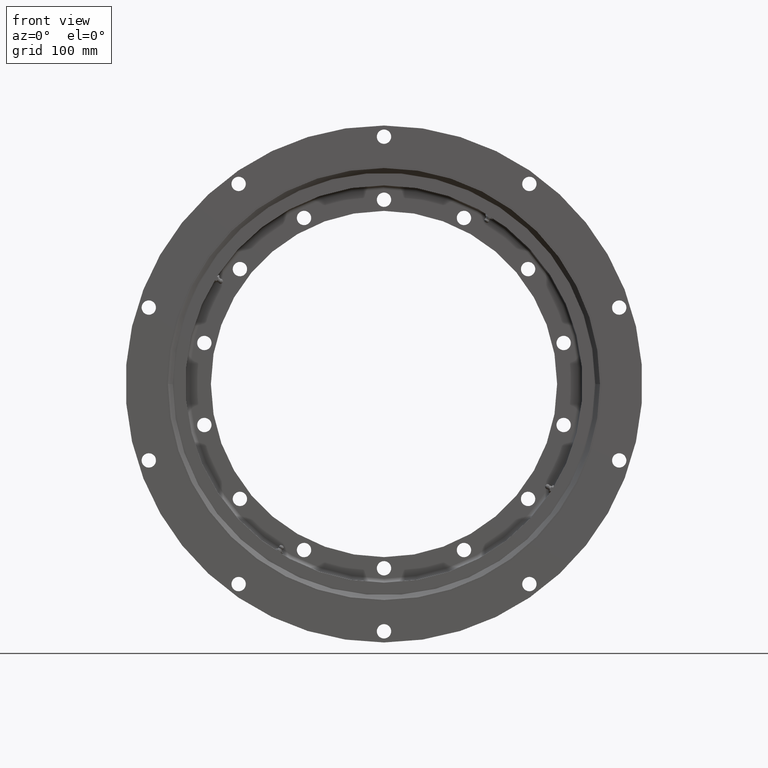
[diagram: clean part render]
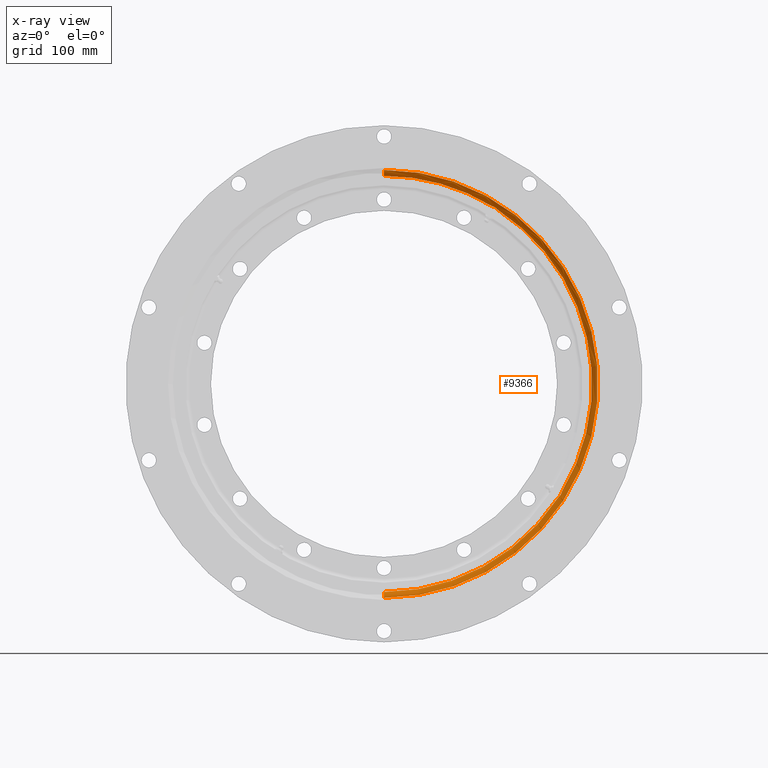
[diagram: x-ray — body ghosted, one internal face saturated and labeled with its STEP entity id]
A machine part, front view, then the same camera in x-ray: the body is ghosted and one INTERNAL B-rep face — a face not visible from any outside direction — is saturated and labeled: STEP entity #9366.
In plain terms, the highlighted toroidal blend (fillet) surface has major radius 270.5 mm and minor (blend) radius 9.75 mm.
Its self-contained STEP definition (entity closure, byte-faithful):
#76 = CARTESIAN_POINT ( 'NONE',  ( 138.8800591183159000, -3.500224078387525100, 221.4549976875646300 ) ) ;
#124 = VERTEX_POINT ( 'NONE', #547 ) ;
#193 = EDGE_LOOP ( 'NONE', ( #3663, #772, #424, #7395, #8630, #4376, #3859, #8140 ) ) ;
#239 = CARTESIAN_POINT ( 'NONE',  ( 0.0000000000000000000, 4.378157564182067000E-016, 270.5000000000000000 ) ) ;
#251 = CIRCLE ( 'NONE', #1826, 268.2499999999999400 ) ;
#303 = CARTESIAN_POINT ( 'NONE',  ( 222.5433277537596000, -1.557799274431172400, -136.1217524567283300 ) ) ;
#306 = CARTESIAN_POINT ( 'NONE',  ( 137.1294469064689000, -2.782060059802703700, 222.2547474271017300 ) ) ;
#342 = CARTESIAN_POINT ( 'NONE',  ( 140.7475804155833100, -2.780852899071048600, 219.9808737685548300 ) ) ;
#345 = TOROIDAL_SURFACE ( 'NONE', #6918, 270.5000000000000000, 9.750000000000000000 ) ;
#362 = DIRECTION ( 'NONE',  ( -0.0000000000000000000, 1.000000000000000000, -2.727064569436389700E-017 ) ) ;
#424 = ORIENTED_EDGE ( 'NONE', *, *, #3577, .T. ) ;
#431 = CARTESIAN_POINT ( 'NONE',  ( 219.2010795744142800, -1.562060620191480800, -141.4422267745897300 ) ) ;
#514 = CARTESIAN_POINT ( 'NONE',  ( 218.9013322833294500, 3.983541815740415600E-009, -141.6784006988482600 ) ) ;
#547 = CARTESIAN_POINT ( 'NONE',  ( 141.6784006988474700, 4.002741449246328300E-009, 218.9013322833299100 ) ) ;
#677 = AXIS2_PLACEMENT_3D ( 'NONE', #239, #2556, #3318 ) ;
#680 = CARTESIAN_POINT ( 'NONE',  ( 135.9399504802465800, -1.134555860348924300, 222.5853209432397900 ) ) ;
#692 = CARTESIAN_POINT ( 'NONE',  ( 138.0765613227555900, -3.319588108228148600, 221.8768568323748400 ) ) ;
#772 = ORIENTED_EDGE ( 'NONE', *, *, #5962, .T. ) ;
#833 = CARTESIAN_POINT ( 'NONE',  ( 137.6824525636340600, -3.142621221538537800, 222.0484958603185000 ) ) ;
#849 = CARTESIAN_POINT ( 'NONE',  ( 136.1211422573414000, -1.556442049660956800, 222.5434698988041500 ) ) ;
#865 = VERTEX_POINT ( 'NONE', #514 ) ;
#957 = CARTESIAN_POINT ( 'NONE',  ( 136.9548264361558000, -2.635532016342790700, 222.3119848796000000 ) ) ;
#971 = CARTESIAN_POINT ( 'NONE',  ( 141.6635651407930000, -0.4613848610804012800, 218.9208245112679100 ) ) ;
#1040 = CARTESIAN_POINT ( 'NONE',  ( 221.0800476896037600, -3.477122078500964900, -139.4593177460055200 ) ) ;
#1076 = DIRECTION ( 'NONE',  ( 0.0000000000000000000, 2.727064569436389400E-017, 1.000000000000000000 ) ) ;
#1078 = CARTESIAN_POINT ( 'NONE',  ( 222.6004179403163900, -0.9153663312041254700, -135.8701898177673400 ) ) ;
#1114 = CIRCLE ( 'NONE', #3373, 260.7500000000000600 ) ;
#1202 = AXIS2_PLACEMENT_3D ( 'NONE', #7824, #2513, #6551 ) ;
#1203 = CARTESIAN_POINT ( 'NONE',  ( 3.193266528776723400E-014, -8.132924533075886600E-015, -260.7500000000000600 ) ) ;
#1209 = CARTESIAN_POINT ( 'NONE',  ( 219.4911821013024600, -2.138512993942472300, -141.1986388680401800 ) ) ;
#1287 = CARTESIAN_POINT ( 'NONE',  ( 140.8740291660219800, -2.635096022569781500, 219.8492425910686400 ) ) ;
#1437 = CARTESIAN_POINT ( 'NONE',  ( 220.2511654704820500, -3.033943838048570800, -140.4713385658836300 ) ) ;
#1586 = AXIS2_PLACEMENT_3D ( 'NONE', #7925, #3418, #8677 ) ;
#1596 = CARTESIAN_POINT ( 'NONE',  ( 3.285115038712774100E-014, -9.486832980505129200, -268.2499999999999400 ) ) ;
#1628 = CARTESIAN_POINT ( 'NONE',  ( 141.0985235887259300, -2.315439575868399700, 219.6055102806962200 ) ) ;
#1633 = VERTEX_POINT ( 'NONE', #1596 ) ;
#1735 = CARTESIAN_POINT ( 'NONE',  ( 0.0000000000000000000, -9.486832980505122100, -5.874717026069499600E-016 ) ) ;
#1745 = CARTESIAN_POINT ( 'NONE',  ( 222.4494125104874600, -2.137644252033389600, -136.4902647877969500 ) ) ;
#1806 = CARTESIAN_POINT ( 'NONE',  ( 221.4555106576639800, -3.500047596012934500, -138.8791107094074300 ) ) ;
#1826 = AXIS2_PLACEMENT_3D ( 'NONE', #1735, #6265, #2274 ) ;
#1838 = CARTESIAN_POINT ( 'NONE',  ( 222.6255568191524200, -0.2305583610814659100, -135.7513313043869200 ) ) ;
#1879 = CARTESIAN_POINT ( 'NONE',  ( 0.0000000000000000000, -6.938893903907228400E-015, 0.0000000000000000000 ) ) ;
#1920 = B_SPLINE_CURVE_WITH_KNOTS ( 'NONE', 3,
 ( #4095, #3320, #971, #9153, #4558, #2521, #8749, #2243, #1628, #1287, #342, #7567, #8507, #7811, #6671, #4782, #1979, #76, #8404, #3624, #692, #833, #5629, #306, #957, #6436, #8265, #7033, #849, #680, #5033, #9135, #8637, #4043 ),
 .UNSPECIFIED., .F., .F.,
 ( 4, 2, 2, 2, 2, 2, 2, 2, 2, 2, 2, 2, 2, 2, 2, 2, 4 ),
 ( 0.01277570042763835400, 0.01346586095650993300, 0.01415602148538151200, 0.01484618201425309100, 0.01553634254312466800, 0.01622650307199624600, 0.01691666360086782600, 0.01760682412973940300, 0.01829698465861098400, 0.01898714518748256100, 0.01967730571635414200, 0.02036746624522571900, 0.02105762677409729600, 0.02174778730296887700, 0.02243794783184045400, 0.02312810836071203100, 0.02381826888958361200 ),
 .UNSPECIFIED. ) ;
#1976 = CARTESIAN_POINT ( 'NONE',  ( 219.8511284562108300, -2.637374137978122100, -140.8722542346244800 ) ) ;
#1979 = CARTESIAN_POINT ( 'NONE',  ( 139.2719441853222400, -3.499772584531207100, 221.2085477571317000 ) ) ;
#2076 = CIRCLE ( 'NONE', #677, 9.749999999999980500 ) ;
#2243 = CARTESIAN_POINT ( 'NONE',  ( 141.1983574798053400, -2.139311068810180800, 219.4915281434647100 ) ) ;
#2274 = DIRECTION ( 'NONE',  ( 0.0000000000000000000, 2.586726525221707200E-017, 1.000000000000000000 ) ) ;
#2488 = AXIS2_PLACEMENT_3D ( 'NONE', #9770, #4272, #8882 ) ;
#2513 = DIRECTION ( 'NONE',  ( 1.000000000000000000, 3.339690896028429500E-033, 1.224646799147353200E-016 ) ) ;
#2521 = CARTESIAN_POINT ( 'NONE',  ( 141.4433872232088700, -1.558293939363959700, 219.1996444912896000 ) ) ;
#2531 = CARTESIAN_POINT ( 'NONE',  ( 222.6255568192323700, 3.967997770962592700E-009, -135.7513313044360100 ) ) ;
#2556 = DIRECTION ( 'NONE',  ( -1.000000000000000000, 0.0000000000000000000, 0.0000000000000000000 ) ) ;
#2572 = CARTESIAN_POINT ( 'NONE',  ( 221.7827367496894100, -3.386130355564765700, -138.2744407098071800 ) ) ;
#2856 = VERTEX_POINT ( 'NONE', #3079 ) ;
#3079 = CARTESIAN_POINT ( 'NONE',  ( 135.7513313044352100, 3.983341958869252900E-009, 222.6255568192328300 ) ) ;
#3200 = VERTEX_POINT ( 'NONE', #4888 ) ;
#3265 = CARTESIAN_POINT ( 'NONE',  ( 222.4093670723963200, -2.312950599751114400, -136.6349529730108000 ) ) ;
#3318 = DIRECTION ( 'NONE',  ( 0.0000000000000000000, 0.0000000000000000000, 1.000000000000000000 ) ) ;
#3320 = CARTESIAN_POINT ( 'NONE',  ( 141.6784006987977900, -0.2324756890611882100, 218.9013322832483900 ) ) ;
#3336 = CARTESIAN_POINT ( 'NONE',  ( 222.0480898218988300, -3.143027600818233800, -137.6833776026919300 ) ) ;
#3373 = AXIS2_PLACEMENT_3D ( 'NONE', #5696, #362, #1076 ) ;
#3418 = DIRECTION ( 'NONE',  ( -0.0000000000000000000, 1.000000000000000000, -2.727064569436389700E-017 ) ) ;
#3476 = CARTESIAN_POINT ( 'NONE',  ( 218.9013322833294500, 3.983541815740415600E-009, -141.6784006988482600 ) ) ;
#3577 = EDGE_CURVE ( 'NONE', #3200, #1633, #251, .T. ) ;
#3624 = CARTESIAN_POINT ( 'NONE',  ( 138.2777801144273400, -3.387017696819255400, 221.7810434790019700 ) ) ;
#3663 = ORIENTED_EDGE ( 'NONE', *, *, #9723, .F. ) ;
#3859 = ORIENTED_EDGE ( 'NONE', *, *, #6539, .F. ) ;
#3999 = CARTESIAN_POINT ( 'NONE',  ( 222.5162808187851300, -1.761318596372083400, -136.2342063905855400 ) ) ;
#4043 = CARTESIAN_POINT ( 'NONE',  ( 135.7513313044352100, 3.983341958869252900E-009, 222.6255568192328300 ) ) ;
#4091 = CARTESIAN_POINT ( 'NONE',  ( 222.2553831454488300, -2.780539213090968500, -137.1275558280740400 ) ) ;
#4095 = CARTESIAN_POINT ( 'NONE',  ( 141.6784006988474700, 4.002741449246328300E-009, 218.9013322833299100 ) ) ;
#4232 = CARTESIAN_POINT ( 'NONE',  ( 218.9212325243807100, -0.4648879258309051000, -141.6632524630523200 ) ) ;
#4272 = DIRECTION ( 'NONE',  ( -0.0000000000000000000, 1.000000000000000000, -2.727064569436389700E-017 ) ) ;
#4376 = ORIENTED_EDGE ( 'NONE', *, *, #8292, .T. ) ;
#4393 = FACE_OUTER_BOUND ( 'NONE', #193, .T. ) ;
#4558 = CARTESIAN_POINT ( 'NONE',  ( 141.5599701424561700, -1.136115117522376300, 219.0542483133359600 ) ) ;
#4782 = CARTESIAN_POINT ( 'NONE',  ( 139.4604140508229500, -3.476813205476495700, 221.0792175677784100 ) ) ;
#4863 = CARTESIAN_POINT ( 'NONE',  ( 222.3116365293784300, -2.636787778095696300, -136.9560022667690800 ) ) ;
#4888 = CARTESIAN_POINT ( 'NONE',  ( 0.0000000000000000000, -9.486832980505115000, 268.2499999999999400 ) ) ;
#4999 = CARTESIAN_POINT ( 'NONE',  ( 219.0543677080990200, -1.136857865569877600, -141.5598840622927800 ) ) ;
#5033 = CARTESIAN_POINT ( 'NONE',  ( 135.8701472137224800, -0.9157137028560111700, 222.6004283635062100 ) ) ;
#5574 = EDGE_CURVE ( 'NONE', #865, #6011, #8116, .T. ) ;
#5595 = CARTESIAN_POINT ( 'NONE',  ( 220.8081478958873700, -3.385836835493336100, -139.8252769055579300 ) ) ;
#5626 = CARTESIAN_POINT ( 'NONE',  ( 222.5853932649239900, -1.133902375640779100, -135.9396425685851900 ) ) ;
#5629 = CARTESIAN_POINT ( 'NONE',  ( 137.4927865275997800, -3.034893202431746800, 222.1230971035929000 ) ) ;
#5696 = CARTESIAN_POINT ( 'NONE',  ( 0.0000000000000000000, -8.132924533075897600E-015, 3.256198623627719100E-032 ) ) ;
#5757 = CARTESIAN_POINT ( 'NONE',  ( 219.2893098737205500, -1.762045047303097300, -141.3701583042644400 ) ) ;
#5962 = EDGE_CURVE ( 'NONE', #8413, #3200, #2076, .T. ) ;
#5972 = CARTESIAN_POINT ( 'NONE',  ( 220.3923315771533300, -3.143571011565214200, -140.3188712393471700 ) ) ;
#6005 = EDGE_CURVE ( 'NONE', #6011, #1633, #7627, .T. ) ;
#6011 = VERTEX_POINT ( 'NONE', #1203 ) ;
#6265 = DIRECTION ( 'NONE',  ( -0.0000000000000000000, 1.000000000000000000, -2.727064569436389700E-017 ) ) ;
#6336 = CARTESIAN_POINT ( 'NONE',  ( 221.2108955660945100, -3.499952245429961600, -139.2683420682070300 ) ) ;
#6340 = DIRECTION ( 'NONE',  ( 0.0000000000000000000, 2.727064569436390000E-017, 1.000000000000000000 ) ) ;
#6371 = CARTESIAN_POINT ( 'NONE',  ( 222.6205442932891300, -0.4648683837147681300, -135.7758279531813600 ) ) ;
#6436 = CARTESIAN_POINT ( 'NONE',  ( 136.6372733215402800, -2.315360567171183900, 222.4086702852550000 ) ) ;
#6501 = CARTESIAN_POINT ( 'NONE',  ( 219.6062830976623300, -2.316646229739730800, -141.0978492793770400 ) ) ;
#6539 = EDGE_CURVE ( 'NONE', #124, #6811, #1114, .T. ) ;
#6551 = DIRECTION ( 'NONE',  ( 1.224646799147356200E-016, 0.0000000000000000000, -1.000000000000000000 ) ) ;
#6671 = CARTESIAN_POINT ( 'NONE',  ( 139.8233862672411200, -3.386343770503955400, 220.8095681563556200 ) ) ;
#6721 = CARTESIAN_POINT ( 'NONE',  ( 220.6700706693092400, -3.318716393018774200, -139.9965555402062300 ) ) ;
#6811 = VERTEX_POINT ( 'NONE', #2531 ) ;
#6918 = AXIS2_PLACEMENT_3D ( 'NONE', #1879, #8673, #6340 ) ;
#7033 = CARTESIAN_POINT ( 'NONE',  ( 136.2341140260064900, -1.761401592857087900, 222.5163184804101200 ) ) ;
#7102 = CARTESIAN_POINT ( 'NONE',  ( 221.5714141152286900, -3.477120128346052700, -138.6773127420663100 ) ) ;
#7128 = CARTESIAN_POINT ( 'NONE',  ( 222.6255568192323700, 3.967997770962592700E-009, -135.7513313044360100 ) ) ;
#7264 = CARTESIAN_POINT ( 'NONE',  ( 219.9808295134458500, -2.780754852113963300, -140.7476052713236100 ) ) ;
#7395 = ORIENTED_EDGE ( 'NONE', *, *, #6005, .F. ) ;
#7416 = EDGE_CURVE ( 'NONE', #124, #2856, #1920, .T. ) ;
#7567 = CARTESIAN_POINT ( 'NONE',  ( 140.4703059805351900, -3.034814612052669300, 220.2521558797062400 ) ) ;
#7627 = CIRCLE ( 'NONE', #1202, 9.749999999999980500 ) ;
#7802 = CIRCLE ( 'NONE', #2488, 260.7500000000000600 ) ;
#7811 = CARTESIAN_POINT ( 'NONE',  ( 139.9987601424028900, -3.317757580280564300, 220.6682580144094700 ) ) ;
#7824 = CARTESIAN_POINT ( 'NONE',  ( 3.312669591693590200E-014, -1.431560356423266300E-014, -270.5000000000000000 ) ) ;
#7852 = CARTESIAN_POINT ( 'NONE',  ( 221.8773648376200900, -3.319076589640924000, -138.0754021483363900 ) ) ;
#7925 = CARTESIAN_POINT ( 'NONE',  ( 0.0000000000000000000, -8.132924533075897600E-015, 3.256198623627719100E-032 ) ) ;
#8116 = CIRCLE ( 'NONE', #1586, 260.7500000000000600 ) ;
#8140 = ORIENTED_EDGE ( 'NONE', *, *, #7416, .T. ) ;
#8265 = CARTESIAN_POINT ( 'NONE',  ( 136.4925802474482200, -2.140826618771023900, 222.4487941822711200 ) ) ;
#8292 = EDGE_CURVE ( 'NONE', #865, #6811, #9057, .T. ) ;
#8404 = CARTESIAN_POINT ( 'NONE',  ( 138.6776185700411200, -3.477054853805047400, 221.5711947797081200 ) ) ;
#8413 = VERTEX_POINT ( 'NONE', #8557 ) ;
#8507 = CARTESIAN_POINT ( 'NONE',  ( 140.3211040656189500, -3.142115224810798400, 220.3903192981842900 ) ) ;
#8557 = CARTESIAN_POINT ( 'NONE',  ( 0.0000000000000000000, -8.132924533075915000E-015, 260.7500000000000600 ) ) ;
#8597 = CARTESIAN_POINT ( 'NONE',  ( 222.1241029482862400, -3.033257718003806500, -137.4901453858072700 ) ) ;
#8630 = ORIENTED_EDGE ( 'NONE', *, *, #5574, .F. ) ;
#8637 = CARTESIAN_POINT ( 'NONE',  ( 135.7513313043852500, -0.2298951634471722600, 222.6255568191533300 ) ) ;
#8673 = DIRECTION ( 'NONE',  ( -0.0000000000000000000, 1.000000000000000000, -2.727064569436389700E-017 ) ) ;
#8677 = DIRECTION ( 'NONE',  ( 0.0000000000000000000, 2.727064569436389400E-017, 1.000000000000000000 ) ) ;
#8747 = CARTESIAN_POINT ( 'NONE',  ( 218.9013322832492700, -0.2316385720260485400, -141.6784006987979000 ) ) ;
#8749 = CARTESIAN_POINT ( 'NONE',  ( 141.3715295427049900, -1.758853721708421000, 219.2876810231323600 ) ) ;
#8882 = DIRECTION ( 'NONE',  ( 0.0000000000000000000, 2.727064569436389400E-017, 1.000000000000000000 ) ) ;
#9057 = B_SPLINE_CURVE_WITH_KNOTS ( 'NONE', 3,
 ( #3476, #8747, #4232, #9495, #4999, #431, #5757, #1209, #6501, #1976, #7264, #1437, #5972, #6721, #5595, #1040, #6336, #1806, #7102, #2572, #7852, #3336, #8597, #4091, #4863, #3265, #1745, #3999, #303, #5626, #1078, #6371, #1838, #7128 ),
 .UNSPECIFIED., .F., .F.,
 ( 4, 2, 2, 2, 2, 2, 2, 2, 2, 2, 2, 2, 2, 2, 2, 2, 4 ),
 ( 0.01956832546042566000, 0.02025842837399762600, 0.02094853128756958900, 0.02163863420114155500, 0.02232873711471351800, 0.02301884002828548400, 0.02370894294185745000, 0.02439904585542941600, 0.02508914876900137900, 0.02577925168257334100, 0.02646935459614530700, 0.02715945750971727300, 0.02784956042328923900, 0.02853966333686120200, 0.02922976625043316800, 0.02991986916400513100, 0.03060997207757709700 ),
 .UNSPECIFIED. ) ;
#9135 = CARTESIAN_POINT ( 'NONE',  ( 135.7751910027897100, -0.4612727643804998600, 222.6206788020267000 ) ) ;
#9153 = CARTESIAN_POINT ( 'NONE',  ( 141.6047225696264000, -0.9123421441841025300, 218.9968170814644300 ) ) ;
#9366 = ADVANCED_FACE ( 'NONE', ( #4393 ), #345, .F. ) ;
#9495 = CARTESIAN_POINT ( 'NONE',  ( 218.9975020081437300, -0.9153091827140379400, -141.6041889151887000 ) ) ;
#9723 = EDGE_CURVE ( 'NONE', #8413, #2856, #7802, .T. ) ;
#9770 = CARTESIAN_POINT ( 'NONE',  ( 0.0000000000000000000, -8.132924533075897600E-015, 3.256198623627719100E-032 ) ) ;